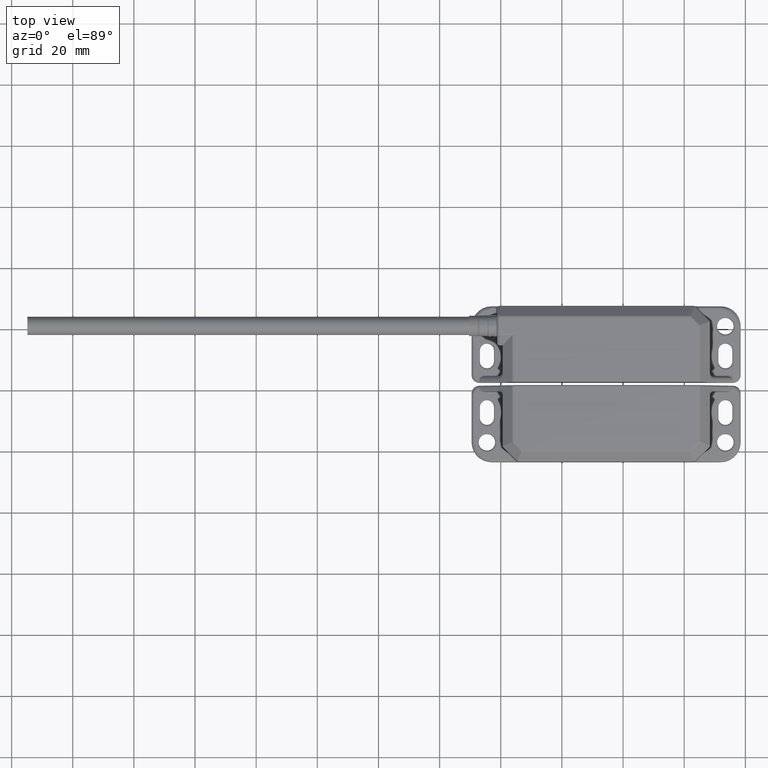
[diagram: clean part render]
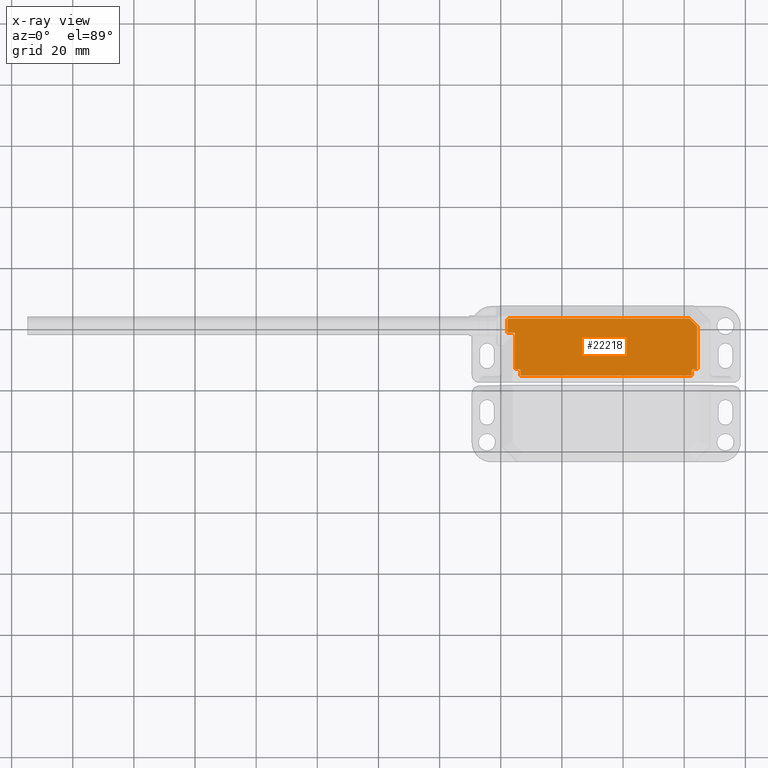
[diagram: x-ray — body ghosted, one internal face saturated and labeled with its STEP entity id]
A machine part, top view, then the same camera in x-ray: the body is ghosted and one INTERNAL B-rep face — a face not visible from any outside direction — is saturated and labeled: STEP entity #22218.
In plain terms, the highlighted planar face has unit normal (0, 0, -1).
Its self-contained STEP definition (entity closure, byte-faithful):
#70 = CARTESIAN_POINT ( 'NONE',  ( 0.4606299212598423700, 0.9842519685039370400, 0.4842519685039369800 ) ) ;
#146 = AXIS2_PLACEMENT_3D ( 'NONE', #8694, #10608, #4856 ) ;
#256 = LINE ( 'NONE', #5094, #10184 ) ;
#301 = ORIENTED_EDGE ( 'NONE', *, *, #6569, .T. ) ;
#381 = VECTOR ( 'NONE', #13101, 39.37007874015748100 ) ;
#430 = VERTEX_POINT ( 'NONE', #13690 ) ;
#519 = VERTEX_POINT ( 'NONE', #17229 ) ;
#712 = LINE ( 'NONE', #1115, #5681 ) ;
#844 = EDGE_CURVE ( 'NONE', #8955, #17907, #12059, .T. ) ;
#1115 = CARTESIAN_POINT ( 'NONE',  ( 0.6299212598425196800, 0.9842519685039370400, 0.4842519685039370400 ) ) ;
#1163 = CARTESIAN_POINT ( 'NONE',  ( 0.6299212598425196800, 0.08661417322834646900, 0.4842519685039370400 ) ) ;
#1367 = CARTESIAN_POINT ( 'NONE',  ( 2.834645669291338900, 0.9842519685039370400, 0.4842519685039370400 ) ) ;
#1401 = ORIENTED_EDGE ( 'NONE', *, *, #22958, .T. ) ;
#1455 = DIRECTION ( 'NONE',  ( -1.000000000000000000, -0.0000000000000000000, -0.0000000000000000000 ) ) ;
#1623 = EDGE_CURVE ( 'NONE', #519, #13921, #19644, .T. ) ;
#1650 = CARTESIAN_POINT ( 'NONE',  ( 2.834645669291338900, 0.08661417322834646900, 0.4842519685039370400 ) ) ;
#2039 = CARTESIAN_POINT ( 'NONE',  ( 0.6102362204724409700, 0.1456692913385826700, 0.4842519685039369800 ) ) ;
#2159 = DIRECTION ( 'NONE',  ( -1.000000000000000000, 0.0000000000000000000, -0.0000000000000000000 ) ) ;
#2242 = CIRCLE ( 'NONE', #20776, 0.01968503937007875700 ) ;
#2784 = LINE ( 'NONE', #1367, #21810 ) ;
#2955 = DIRECTION ( 'NONE',  ( -0.0000000000000000000, -1.000000000000000000, -0.0000000000000000000 ) ) ;
#3195 = EDGE_CURVE ( 'NONE', #20521, #23380, #9000, .T. ) ;
#3228 = ORIENTED_EDGE ( 'NONE', *, *, #10863, .F. ) ;
#3382 = ORIENTED_EDGE ( 'NONE', *, *, #22066, .T. ) ;
#3476 = EDGE_CURVE ( 'NONE', #430, #17907, #256, .T. ) ;
#3494 = AXIS2_PLACEMENT_3D ( 'NONE', #20726, #7691, #2159 ) ;
#3900 = DIRECTION ( 'NONE',  ( -0.0000000000000000000, -1.000000000000000000, -0.0000000000000000000 ) ) ;
#4856 = DIRECTION ( 'NONE',  ( -1.000000000000000000, 0.0000000000000000000, 0.0000000000000000000 ) ) ;
#5094 = CARTESIAN_POINT ( 'NONE',  ( 0.8464566929133857700, 0.6379591754344196000, 0.4842519685039370400 ) ) ;
#5142 = VERTEX_POINT ( 'NONE', #1163 ) ;
#5347 = ORIENTED_EDGE ( 'NONE', *, *, #1623, .T. ) ;
#5516 = EDGE_CURVE ( 'NONE', #23380, #10319, #2242, .T. ) ;
#5681 = VECTOR ( 'NONE', #8832, 39.37007874015748100 ) ;
#5713 = DIRECTION ( 'NONE',  ( 1.000000000000000000, 0.0000000000000000000, -0.0000000000000000000 ) ) ;
#6182 = CARTESIAN_POINT ( 'NONE',  ( 2.805455852116640600, 0.8187337379514065800, 0.4842519685039369800 ) ) ;
#6476 = EDGE_CURVE ( 'NONE', #20859, #10461, #2784, .T. ) ;
#6569 = EDGE_CURVE ( 'NONE', #5142, #10319, #712, .T. ) ;
#7526 = ORIENTED_EDGE ( 'NONE', *, *, #19590, .T. ) ;
#7691 = DIRECTION ( 'NONE',  ( 0.0000000000000000000, 0.0000000000000000000, -1.000000000000000000 ) ) ;
#7734 = CARTESIAN_POINT ( 'NONE',  ( 2.854330708661417100, 0.1653543307086614600, 0.4842519685039369800 ) ) ;
#7922 = CIRCLE ( 'NONE', #146, 0.01968503937007875700 ) ;
#8351 = LINE ( 'NONE', #10598, #20684 ) ;
#8694 = CARTESIAN_POINT ( 'NONE',  ( 2.854330708661417100, 0.1456692913385826700, 0.4842519685039369800 ) ) ;
#8758 = ORIENTED_EDGE ( 'NONE', *, *, #20346, .F. ) ;
#8832 = DIRECTION ( 'NONE',  ( 0.0000000000000000000, 1.000000000000000000, 0.0000000000000000000 ) ) ;
#8955 = VERTEX_POINT ( 'NONE', #12129 ) ;
#9000 = LINE ( 'NONE', #9378, #23949 ) ;
#9378 = CARTESIAN_POINT ( 'NONE',  ( 0.6299212598425196800, 0.1653543307086614600, 0.4842519685039369800 ) ) ;
#9437 = DIRECTION ( 'NONE',  ( 0.0000000000000000000, 0.0000000000000000000, -1.000000000000000000 ) ) ;
#9550 = CARTESIAN_POINT ( 'NONE',  ( 2.805455852116640200, 0.8187337379514066900, 0.4842519685039370400 ) ) ;
#9566 = EDGE_LOOP ( 'NONE', ( #10924, #3228, #13643, #3382, #301, #18887, #11911, #8758, #18865, #16299, #1401, #23026, #7526, #5347 ) ) ;
#10184 = VECTOR ( 'NONE', #1455, 39.37007874015748100 ) ;
#10319 = VERTEX_POINT ( 'NONE', #17815 ) ;
#10461 = VERTEX_POINT ( 'NONE', #1650 ) ;
#10598 = CARTESIAN_POINT ( 'NONE',  ( 0.0000000000000000000, 0.8187337379514066900, 0.4842519685039370400 ) ) ;
#10608 = DIRECTION ( 'NONE',  ( 0.0000000000000000000, 0.0000000000000000000, -1.000000000000000000 ) ) ;
#10677 = VERTEX_POINT ( 'NONE', #7734 ) ;
#10863 = EDGE_CURVE ( 'NONE', #20859, #10677, #7922, .T. ) ;
#10924 = ORIENTED_EDGE ( 'NONE', *, *, #14078, .F. ) ;
#11059 = CARTESIAN_POINT ( 'NONE',  ( 2.905347911179753300, 0.9842519685039370400, 0.4842519685039370400 ) ) ;
#11310 = VECTOR ( 'NONE', #3900, 39.37007874015748100 ) ;
#11495 = CARTESIAN_POINT ( 'NONE',  ( 0.4606299212598423700, 0.7908948882983928300, 0.4842519685039369800 ) ) ;
#11911 = ORIENTED_EDGE ( 'NONE', *, *, #3195, .F. ) ;
#12059 = LINE ( 'NONE', #70, #381 ) ;
#12129 = CARTESIAN_POINT ( 'NONE',  ( 0.4606299212598423700, 0.7908948882983928300, 0.4842519685039369800 ) ) ;
#12389 = VECTOR ( 'NONE', #19830, 39.37007874015748100 ) ;
#12935 = DIRECTION ( 'NONE',  ( -1.000000000000000000, 0.0000000000000000000, 0.0000000000000000000 ) ) ;
#13101 = DIRECTION ( 'NONE',  ( -0.0000000000000000000, -1.000000000000000000, -0.0000000000000000000 ) ) ;
#13348 = CARTESIAN_POINT ( 'NONE',  ( 0.4803149606299210700, 0.8187337379514066900, 0.4842519685039369800 ) ) ;
#13406 = CARTESIAN_POINT ( 'NONE',  ( 2.834645669291338900, 0.1456692913385826400, 0.4842519685039369800 ) ) ;
#13643 = ORIENTED_EDGE ( 'NONE', *, *, #6476, .T. ) ;
#13690 = CARTESIAN_POINT ( 'NONE',  ( 0.5592190179541052200, 0.6379591754344196000, 0.4842519685039370400 ) ) ;
#13725 = VERTEX_POINT ( 'NONE', #6182 ) ;
#13921 = VERTEX_POINT ( 'NONE', #16480 ) ;
#14078 = EDGE_CURVE ( 'NONE', #10677, #13921, #18409, .T. ) ;
#14237 = DIRECTION ( 'NONE',  ( 1.000000000000000000, -0.0000000000000000000, 0.0000000000000000000 ) ) ;
#14355 = CARTESIAN_POINT ( 'NONE',  ( 0.5592190179541052200, 0.1653543307086614000, 0.4842519685039370400 ) ) ;
#14391 = CARTESIAN_POINT ( 'NONE',  ( 2.834645669291338900, 0.1653543307086614600, 0.4842519685039369800 ) ) ;
#14655 = VECTOR ( 'NONE', #2955, 39.37007874015748100 ) ;
#14901 = PLANE ( 'NONE',  #3494 ) ;
#15860 = EDGE_CURVE ( 'NONE', #20431, #13725, #8351, .T. ) ;
#16137 = CARTESIAN_POINT ( 'NONE',  ( 0.0000000000000000000, 0.08661417322834648300, 0.4842519685039370400 ) ) ;
#16299 = ORIENTED_EDGE ( 'NONE', *, *, #844, .F. ) ;
#16363 = VECTOR ( 'NONE', #20053, 39.37007874015748100 ) ;
#16480 = CARTESIAN_POINT ( 'NONE',  ( 2.905347911179753800, 0.1653543307086614000, 0.4842519685039370400 ) ) ;
#16918 = CARTESIAN_POINT ( 'NONE',  ( 0.5592190179541052200, 0.9842519685039370400, 0.4842519685039370400 ) ) ;
#17229 = CARTESIAN_POINT ( 'NONE',  ( 2.905347911179753800, 0.7188416788882945300, 0.4842519685039370900 ) ) ;
#17645 = LINE ( 'NONE', #16137, #12389 ) ;
#17815 = CARTESIAN_POINT ( 'NONE',  ( 0.6299212598425196800, 0.1456692913385826400, 0.4842519685039369800 ) ) ;
#17907 = VERTEX_POINT ( 'NONE', #22600 ) ;
#18172 =( BOUNDED_CURVE ( )  B_SPLINE_CURVE ( 3, ( #11495, #22854, #22937, #13348 ),
 .UNSPECIFIED., .F., .F. ) 
 B_SPLINE_CURVE_WITH_KNOTS ( ( 4, 4 ),
 ( 1.570796326794896600, 3.141592653589793100 ),
 .UNSPECIFIED. ) 
 CURVE ( )  GEOMETRIC_REPRESENTATION_ITEM ( )  RATIONAL_B_SPLINE_CURVE ( ( 1.000000000000000000, 0.8047378541243649400, 0.8047378541243649400, 1.000000000000000000 ) ) 
 REPRESENTATION_ITEM ( '' )  );
#18409 = LINE ( 'NONE', #14391, #16363 ) ;
#18533 = FACE_OUTER_BOUND ( 'NONE', #9566, .T. ) ;
#18793 = DIRECTION ( 'NONE',  ( 0.7071067811865509000, -0.7071067811865441300, 0.0000000000000000000 ) ) ;
#18865 = ORIENTED_EDGE ( 'NONE', *, *, #3476, .T. ) ;
#18887 = ORIENTED_EDGE ( 'NONE', *, *, #5516, .F. ) ;
#18915 = CARTESIAN_POINT ( 'NONE',  ( 0.6102362204724409700, 0.1653543307086614600, 0.4842519685039369800 ) ) ;
#19590 = EDGE_CURVE ( 'NONE', #13725, #519, #23037, .T. ) ;
#19644 = LINE ( 'NONE', #11059, #14655 ) ;
#19830 = DIRECTION ( 'NONE',  ( -1.000000000000000000, 0.0000000000000000000, -0.0000000000000000000 ) ) ;
#19975 = DIRECTION ( 'NONE',  ( -0.0000000000000000000, -1.000000000000000000, -0.0000000000000000000 ) ) ;
#20053 = DIRECTION ( 'NONE',  ( 1.000000000000000000, 0.0000000000000000000, -0.0000000000000000000 ) ) ;
#20346 = EDGE_CURVE ( 'NONE', #430, #20521, #21857, .T. ) ;
#20431 = VERTEX_POINT ( 'NONE', #23528 ) ;
#20521 = VERTEX_POINT ( 'NONE', #14355 ) ;
#20684 = VECTOR ( 'NONE', #14237, 39.37007874015748100 ) ;
#20726 = CARTESIAN_POINT ( 'NONE',  ( 0.0000000000000000000, 0.9842519685039370400, 0.4842519685039370400 ) ) ;
#20776 = AXIS2_PLACEMENT_3D ( 'NONE', #2039, #9437, #12935 ) ;
#20859 = VERTEX_POINT ( 'NONE', #13406 ) ;
#21810 = VECTOR ( 'NONE', #19975, 39.37007874015748100 ) ;
#21857 = LINE ( 'NONE', #16918, #11310 ) ;
#22066 = EDGE_CURVE ( 'NONE', #10461, #5142, #17645, .T. ) ;
#22218 = ADVANCED_FACE ( 'NONE', ( #18533 ), #14901, .T. ) ;
#22600 = CARTESIAN_POINT ( 'NONE',  ( 0.4606299212598423700, 0.6379591754344196000, 0.4842519685039369800 ) ) ;
#22854 = CARTESIAN_POINT ( 'NONE',  ( 0.4606299212598422600, 0.8072025088642627000, 0.4842519685039368700 ) ) ;
#22937 = CARTESIAN_POINT ( 'NONE',  ( 0.4687837315427771400, 0.8187337379514065800, 0.4842519685039368700 ) ) ;
#22958 = EDGE_CURVE ( 'NONE', #8955, #20431, #18172, .T. ) ;
#23026 = ORIENTED_EDGE ( 'NONE', *, *, #15860, .T. ) ;
#23037 = LINE ( 'NONE', #9550, #23603 ) ;
#23380 = VERTEX_POINT ( 'NONE', #18915 ) ;
#23528 = CARTESIAN_POINT ( 'NONE',  ( 0.4803149606299210700, 0.8187337379514066900, 0.4842519685039369800 ) ) ;
#23603 = VECTOR ( 'NONE', #18793, 39.37007874015748100 ) ;
#23949 = VECTOR ( 'NONE', #5713, 39.37007874015748100 ) ;